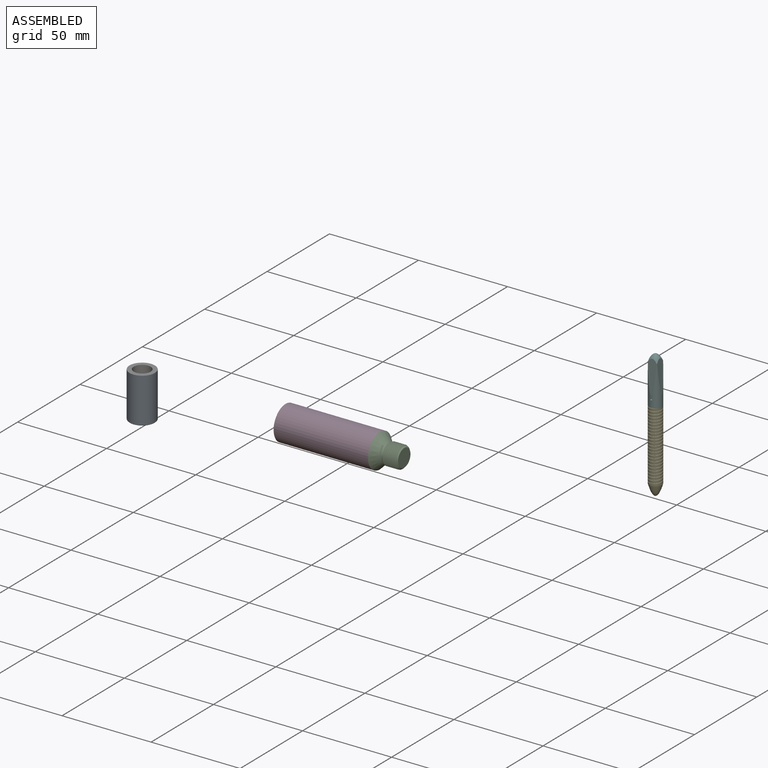
[diagram: assembled view]
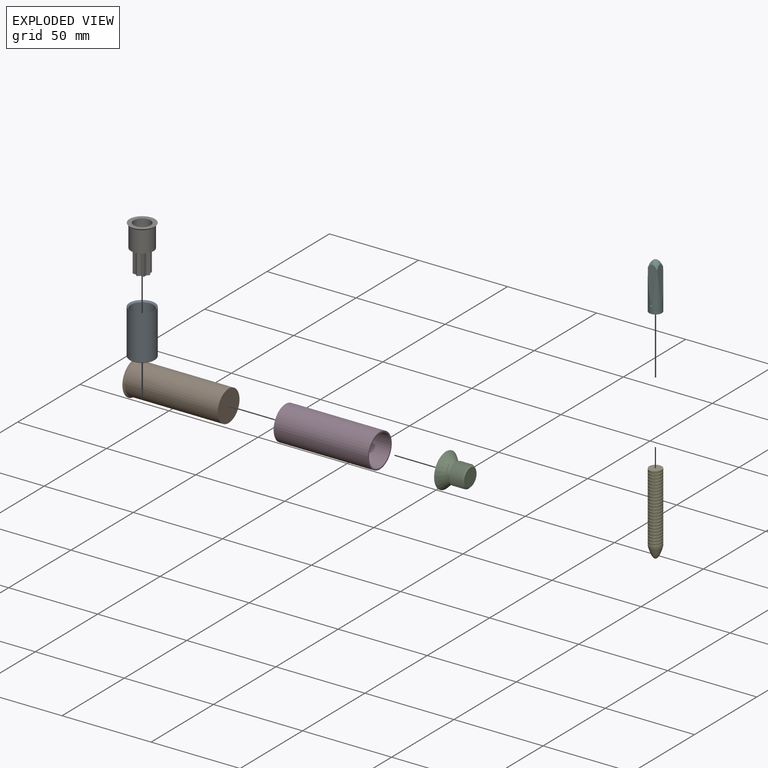
[diagram: exploded view]
GUIDED TOUR — MATED ASSEMBLY (Onshape document 8bd3620c7247700c8958ddae, AutoMate assembly 8bd3620c7247700c8958ddae_053780fc37a57f7eaa4ce051_d3495ea34c9d12acb558c91c_default)

This assembly has 7 components, labeled P0..P6 below (a component is one placed occurrence of a part; the same part can appear more than once), held together by 4 mates. A mate is a constraint between two components; its type names the relative motion it leaves free:
  FASTENED — locks the two components together rigidly (no relative motion).
Axis/direction vectors are unit vectors and 'through' points are millimeter coordinates, both in the assembly's world frame.

MATES
  1. FASTENED "Fastened 4": P0 <-> P6, direction (0.000, 0.000, 1.000) through (-91.17, -55.49, 8.03) mm
  2. FASTENED "Fastened 1": P3 <-> P2, direction (1.000, 0.000, 0.000) through (15.87, -17.82, -18.64) mm
  3. FASTENED "Fastened 2": P1 <-> P3, direction (-1.000, 0.000, 0.000) through (-37.11, -17.82, -18.64) mm
  4. FASTENED "Fastened 3": P4 <-> P5, direction (0.000, 0.000, 1.000) through (130.28, 39.78, 12.93) mm

ASSEMBLY ORDER
  1. P3 — the base component [order heuristic]
  2. P0 — core [order heuristic]
  3. P1 — core [order heuristic]
  4. P6 — core [order heuristic]
  5. P2 [order verified]
  6. P4 [order verified]
  7. P5 [order verified]
Order-tag legend:
  [order verified] — this step's position reverses a verified removal order: the component was checked to insert without passing through the ones already placed.
  [order heuristic] — the first 4 components form the assembly's core: parts whose collision-free extraction could not be verified, listed in mate-graph order.

Of the 7 components, 3 carry the full construction recipe — the FeatureScript program that regenerates the part's solid from scratch; the rest are supplied as boundary geometry only.
Each toured component is shown spotlighted twice — in the assembled view, then in the exploded view, where a leader line traces a displaced component back to its assembled socket (saturated green if recipe-attached, orange if geometry-only; every other component desaturated gray) — followed by its recipe or geometry summary and the mates that hold it.
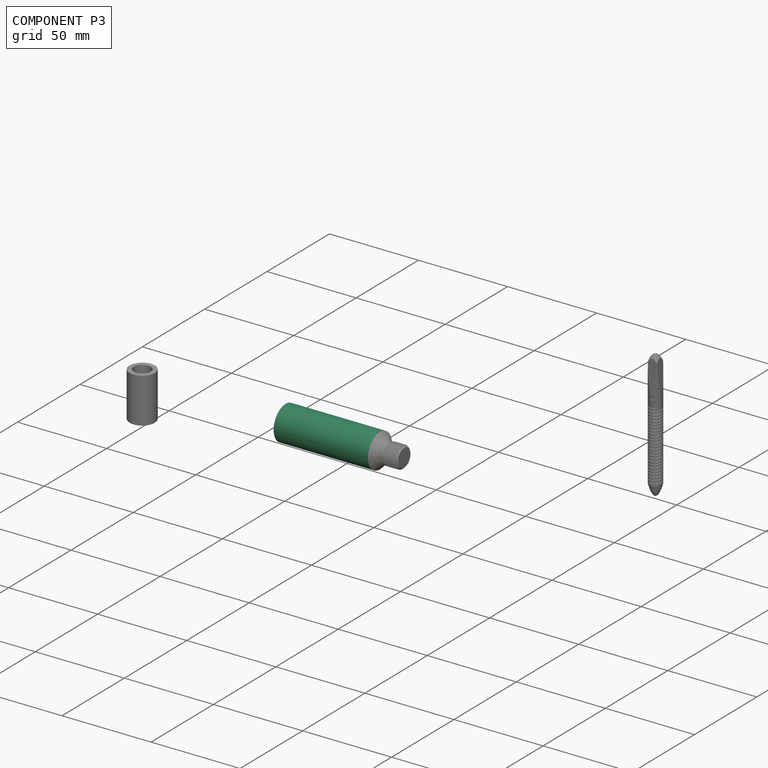
[diagram: component P3 — assembled]
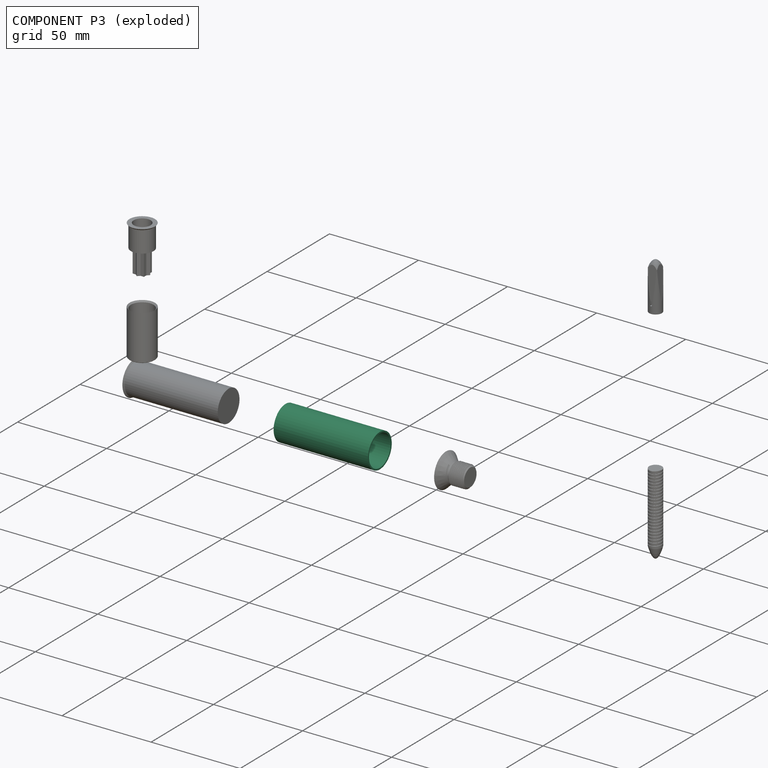
[diagram: component P3 — exploded]
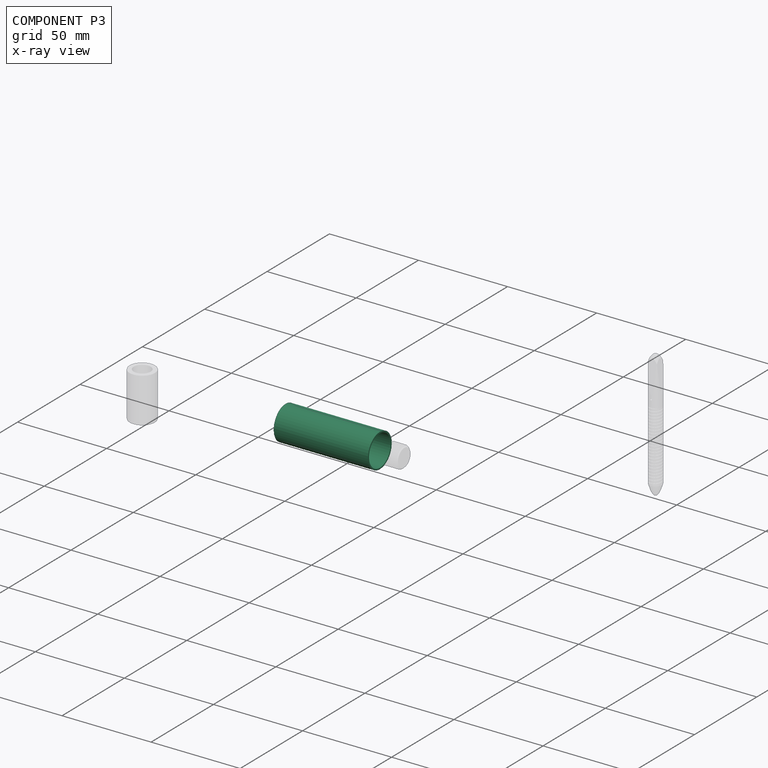
[diagram: component P3 — x-ray view]
COMPONENT P3 — recipe-attached (CADFS 00844887, mesh-verified: the recipe's output STEP matches this component's geometry to below the mesh-comparison resolution (tessellation chordal tolerance ~0.0891 mm)).
Held by: FASTENED mate "Fastened 1" to P2; FASTENED mate "Fastened 2" to P1.
Construction recipe (FeatureScript — the CAD program that rebuilds this solid; sketch coordinates are in the units given by the * unit suffixes, e.g. mm):

FeatureScript 1511;
import(path : "onshape/std/geometry.fs", version : "1511.0");
import(path : "onshape/std/common.fs", version : "1511.0");
const mm = millimeter;
const VERTEX = EntityType.VERTEX;
const EDGE = EntityType.EDGE;
const FACE = EntityType.FACE;
const BODY = EntityType.BODY;
function v(x, y){return vector(x, y);}
function OD(order){return orderDisambiguation(order);}
function OSD(set){return originalSetDisambiguation(set);}
function TD(topology){return topologyDisambiguation(topology);}
function TDD(query){return trueDependencyDisambiguation(query);}
function sQuery(a, b, c) {return sketchEntityQuery(a, b, c);}

annotation { "Feature Type Name" : "Feature", "Feature Type Description" : "" }
export const myFeature = defineFeature(function(context is Context, id is Id, definition is map)
    precondition{}
    {
        {
            var Q0;
            Q0=qCreatedBy(makeId("Front.planeOp"),FACE);
            var sketch = newSketch(context, id + "F0", { "sketchPlane" : qUnion([Q0])});
            skLineSegment(sketch, "E0.bottom", {"start": v(0.8, 8.73) * mm, "end": v(52.98, 8.73) * mm});
            skLineSegment(sketch, "E0.top", {"start": v(0, 9.53) * mm, "end": v(52.98, 9.53) * mm});
            skLineSegment(sketch, "E0.right", {"start": v(52.98, 8.73) * mm, "end": v(52.98, 9.53) * mm});
            skLineSegment(sketch, "E1", {"start": v(0, 0) * mm, "end": v(54.15, 0) * mm, "construction": true});
            skLineSegment(sketch, "E2", {"start": v(0, 9.53) * mm, "end": v(0.8, 8.73) * mm});
            skPoint(sketch, "E3.orphan", {"position": v(0, 8.73) * mm});
            skSolve(sketch);
        }
        {
            var Q0;
            Q0 = qSketchRegion(id + "F0", true);
            var Q1;
            Q1=makeQuery(id+"F0.imprint","IMPRINT",FACE,{"disambiguationData":[TD([[makeQuery(id+"F0.imprint","IMPRINT",EDGE,{"derivedFrom":sQuery(id+"F0.wireOp",EDGE,"E0.bottom")}),1.0]])]});
            var Q2;
            Q2=sQuery(id+"F0.wireOp",EDGE,"E1");
            revolve(context, id + "F1", {"surfaceOperationType" : NewSurfaceOperationType.NEW, "entities" : qUnion([Q0, Q1]), "axis" : qUnion([Q2]), "revolveType" : RevolveType.FULL});
        }
    });
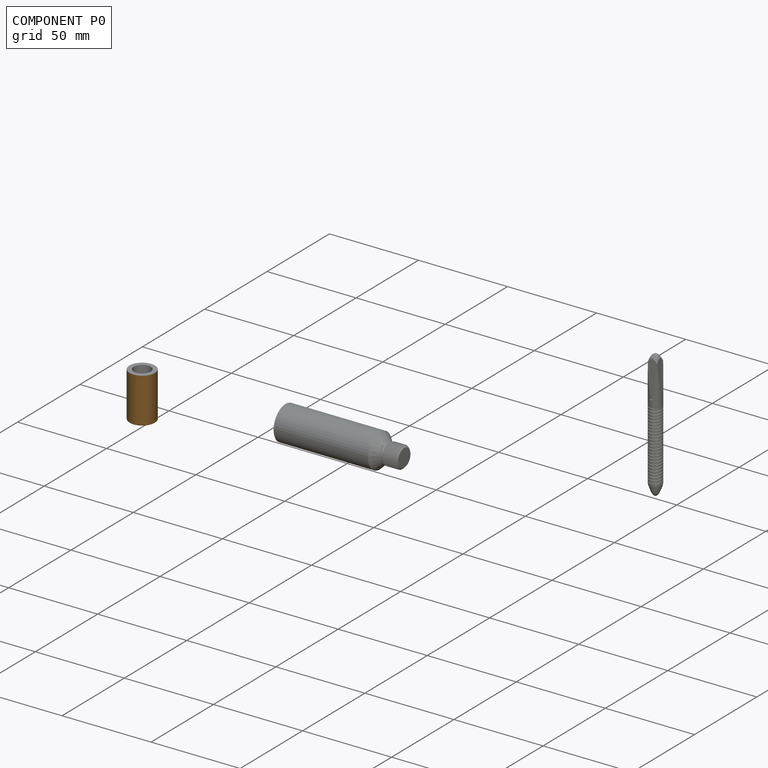
[diagram: component P0 — assembled]
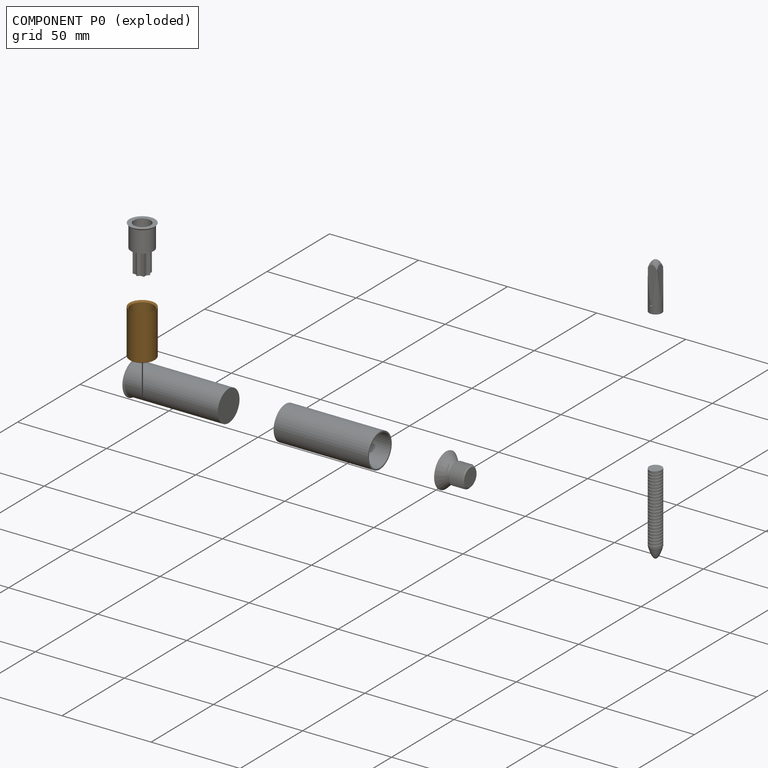
[diagram: component P0 — exploded]
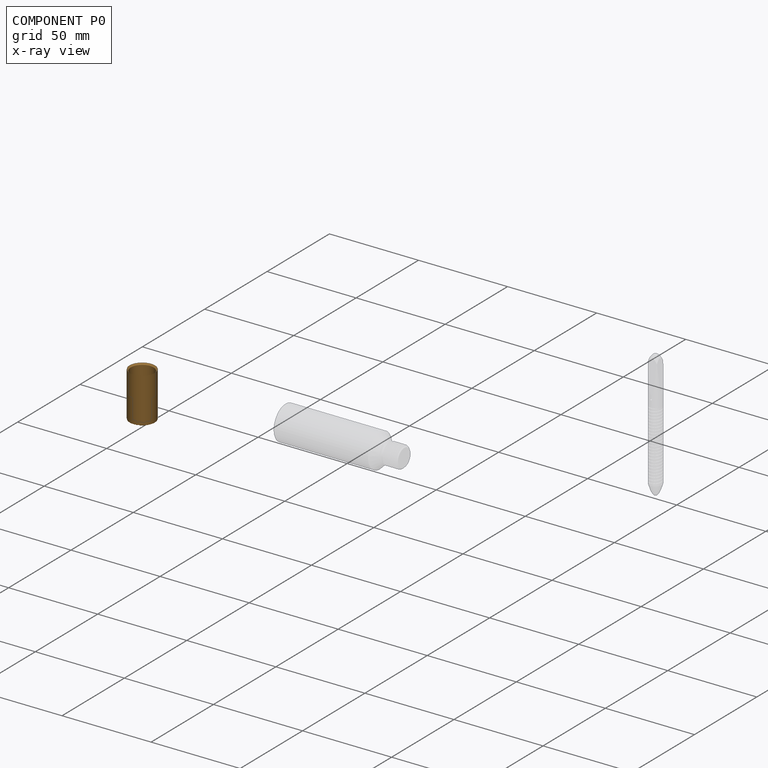
[diagram: component P0 — x-ray view]
COMPONENT P0 — geometry summary (no construction recipe available for this part):
  bounding box: 25.7 x 14.6 x 14.6 mm
  B-rep topology: 1 solid, 22 faces, 116 edges
  volume: 1793 mm^3 (33% of its bounding box)
  symmetry: 4-fold rotationally symmetric about the z axis; mirror-symmetric across its x mid-plane, y mid-plane
Held by: FASTENED mate "Fastened 4" to P6.
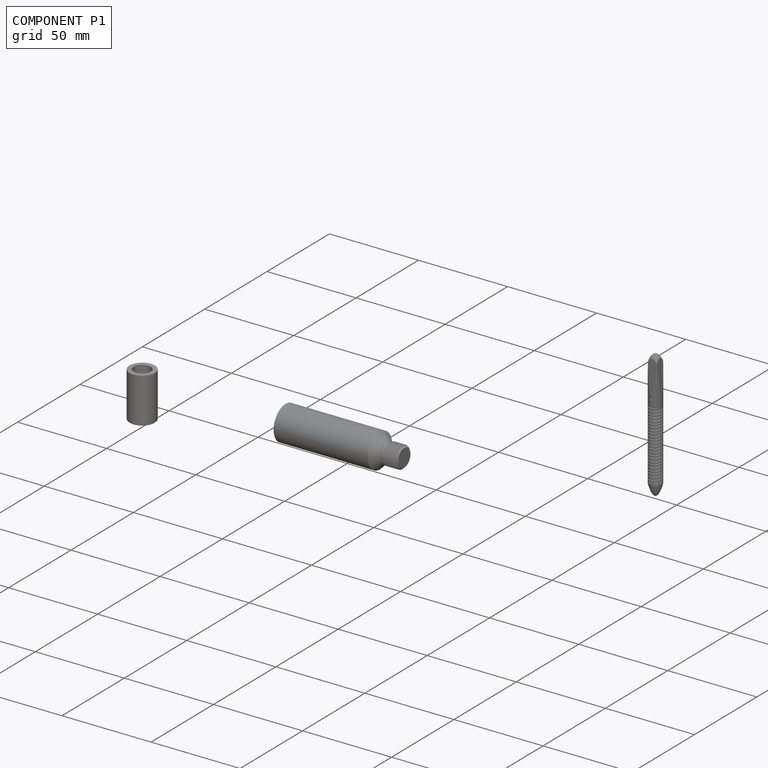
[diagram: component P1 — assembled]
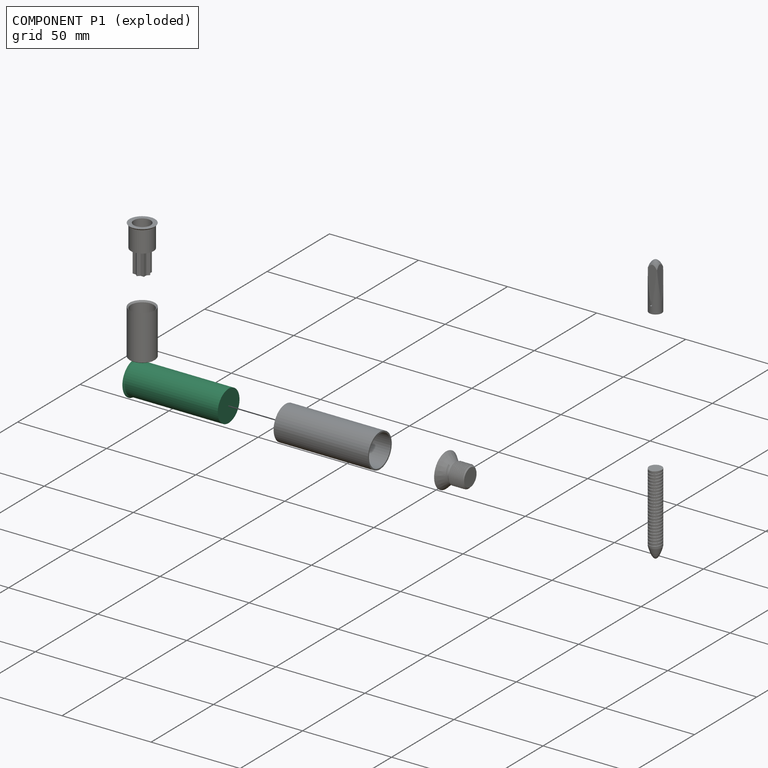
[diagram: component P1 — exploded]
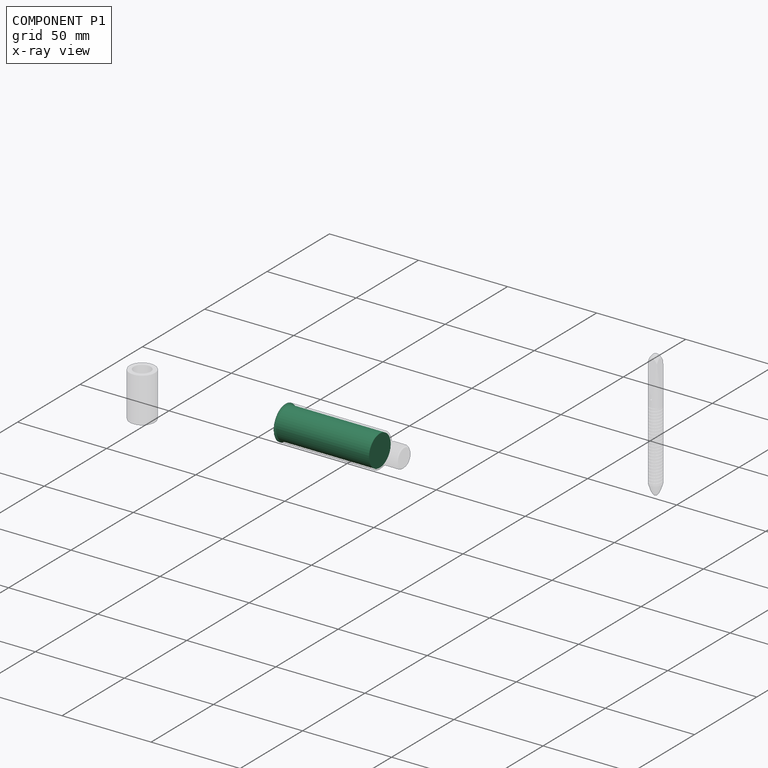
[diagram: component P1 — x-ray view]
COMPONENT P1 — recipe-attached (CADFS 00844889, mesh-verified: the recipe's output STEP matches this component's geometry to below the mesh-comparison resolution (tessellation chordal tolerance ~0.0891 mm)).
Held by: FASTENED mate "Fastened 2" to P3.
Construction recipe (FeatureScript — the CAD program that rebuilds this solid; sketch coordinates are in the units given by the * unit suffixes, e.g. mm):

FeatureScript 1511;
import(path : "onshape/std/geometry.fs", version : "1511.0");
import(path : "onshape/std/common.fs", version : "1511.0");
const mm = millimeter;
const VERTEX = EntityType.VERTEX;
const EDGE = EntityType.EDGE;
const FACE = EntityType.FACE;
const BODY = EntityType.BODY;
function v(x, y){return vector(x, y);}
function OD(order){return orderDisambiguation(order);}
function OSD(set){return originalSetDisambiguation(set);}
function TD(topology){return topologyDisambiguation(topology);}
function TDD(query){return trueDependencyDisambiguation(query);}
function sQuery(a, b, c) {return sketchEntityQuery(a, b, c);}

annotation { "Feature Type Name" : "Feature", "Feature Type Description" : "" }
export const myFeature = defineFeature(function(context is Context, id is Id, definition is map)
    precondition{}
    {
        {
            var Q0;
            Q0=qCreatedBy(makeId("Front.planeOp"),FACE);
            var sketch = newSketch(context, id + "F0", { "sketchPlane" : qUnion([Q0])});
            skLineSegment(sketch, "E0", {"start": v(0, 0) * mm, "end": v(0, 9.53) * mm});
            skLineSegment(sketch, "E1", {"start": v(52.98, 8.73) * mm, "end": v(52.98, 0) * mm});
            skLineSegment(sketch, "E2", {"start": v(52.98, 0) * mm, "end": v(0, 0) * mm, "construction": true});
            skLineSegment(sketch, "E3", {"start": v(0, 9.53) * mm, "end": v(0.8, 8.73) * mm});
            skLineSegment(sketch, "E4", {"start": v(0.8, 8.73) * mm, "end": v(52.98, 8.73) * mm});
            skLineSegment(sketch, "E5", {"start": v(52.2, 6.35) * mm, "end": v(0, 6.35) * mm});
            skLineSegment(sketch, "E6", {"start": v(52.2, 6.35) * mm, "end": v(52.2, 0) * mm});
            skLineSegment(sketch, "E7", {"start": v(52.2, 0) * mm, "end": v(52.98, 0) * mm});
            skSolve(sketch);
        }
        {
            var Q0;
            Q0=makeQuery(id+"F0.imprint","IMPRINT",FACE,{"disambiguationData":[TD([[makeQuery(id+"F0.imprint","IMPRINT",EDGE,{"derivedFrom":sQuery(id+"F0.wireOp",EDGE,"E1")}),-1.0]])]});
            var Q1;
            Q1=sQuery(id+"F0.wireOp",EDGE,"E2");
            revolve(context, id + "F1", {"surfaceOperationType" : NewSurfaceOperationType.NEW, "entities" : qUnion([Q0]), "axis" : qUnion([Q1]), "revolveType" : RevolveType.FULL});
        }
    });
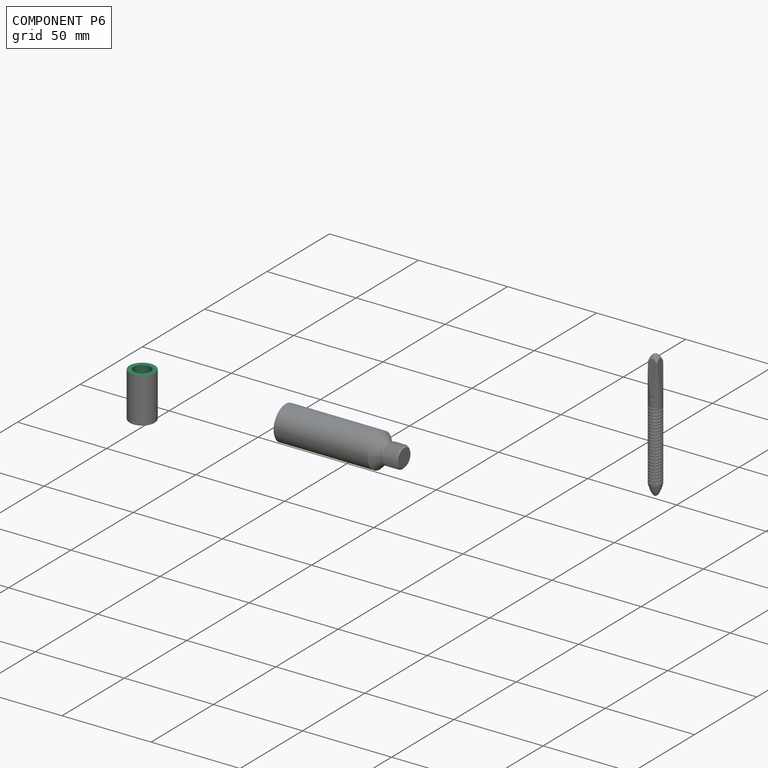
[diagram: component P6 — assembled]
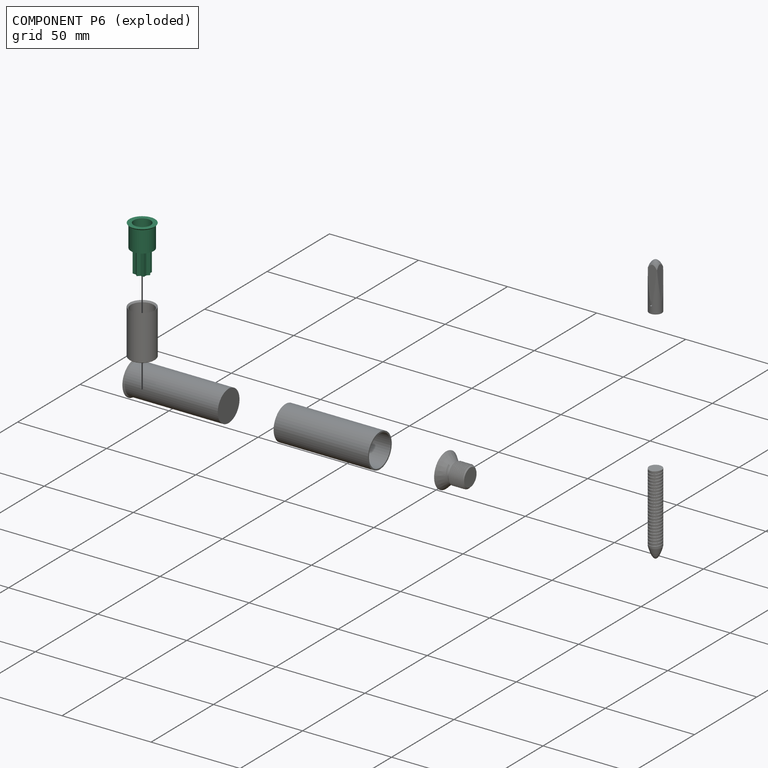
[diagram: component P6 — exploded]
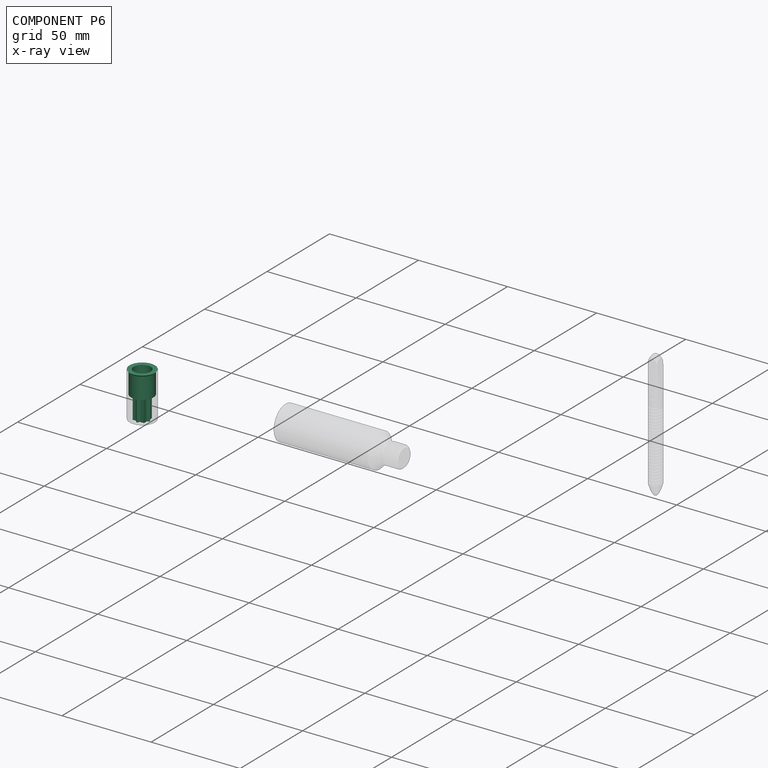
[diagram: component P6 — x-ray view]
COMPONENT P6 — recipe-attached (CADFS 00844892, mesh-verified: the recipe's output STEP matches this component's geometry to below the mesh-comparison resolution (tessellation chordal tolerance ~0.0486 mm)).
Held by: FASTENED mate "Fastened 4" to P0.
Construction recipe (FeatureScript — the CAD program that rebuilds this solid; sketch coordinates are in the units given by the * unit suffixes, e.g. mm):

FeatureScript 1511;
import(path : "onshape/std/geometry.fs", version : "1511.0");
import(path : "onshape/std/common.fs", version : "1511.0");
const mm = millimeter;
const VERTEX = EntityType.VERTEX;
const EDGE = EntityType.EDGE;
const FACE = EntityType.FACE;
const BODY = EntityType.BODY;
function v(x, y){return vector(x, y);}
function OD(order){return orderDisambiguation(order);}
function OSD(set){return originalSetDisambiguation(set);}
function TD(topology){return topologyDisambiguation(topology);}
function TDD(query){return trueDependencyDisambiguation(query);}
function sQuery(a, b, c) {return sketchEntityQuery(a, b, c);}

annotation { "Feature Type Name" : "Feature", "Feature Type Description" : "" }
export const myFeature = defineFeature(function(context is Context, id is Id, definition is map)
    precondition{}
    {
        {
            var Q0;
            Q0=qCreatedBy(makeId("Top.planeOp"),FACE);
            var sketch = newSketch(context, id + "F0", { "sketchPlane" : qUnion([Q0])});
            skLineSegment(sketch, "E0.bottom", {"start": v(3.18, -3.17) * mm, "end": v(1.32, -3.18) * mm});
            skLineSegment(sketch, "E0.top", {"start": v(3.18, 3.18) * mm, "end": v(1.32, 3.18) * mm});
            skLineSegment(sketch, "E0.left", {"start": v(3.18, -3.17) * mm, "end": v(3.18, -1.32) * mm});
            skLineSegment(sketch, "E0.right", {"start": v(-3.18, -3.18) * mm, "end": v(-3.18, -1.32) * mm});
            skPoint(sketch, "E0.middle", {"position": v(0, 0) * mm});
            skLineSegment(sketch, "E1.bottom", {"start": v(3.11, -3.11) * mm, "end": v(1.29, -3.11) * mm});
            skLineSegment(sketch, "E1.top", {"start": v(3.11, 3.11) * mm, "end": v(1.29, 3.11) * mm});
            skLineSegment(sketch, "E1.left", {"start": v(3.11, -3.11) * mm, "end": v(3.11, -1.29) * mm});
            skLineSegment(sketch, "E1.right", {"start": v(-3.11, -3.11) * mm, "end": v(-3.11, -1.29) * mm});
            skLineSegment(sketch, "E2.bottom", {"start": v(0, -4.5) * mm, "end": v(-1.32, -3.17) * mm});
            skLineSegment(sketch, "E2.top", {"start": v(4.5, 0) * mm, "end": v(3.18, 1.32) * mm});
            skLineSegment(sketch, "E2.left", {"start": v(0, -4.5) * mm, "end": v(1.32, -3.17) * mm});
            skLineSegment(sketch, "E2.right", {"start": v(-4.5, 0) * mm, "end": v(-3.18, 1.32) * mm});
            skLineSegment(sketch, "E3.bottom", {"start": v(0, -4.4) * mm, "end": v(-1.29, -3.11) * mm});
            skLineSegment(sketch, "E3.top", {"start": v(4.4, 0) * mm, "end": v(3.11, 1.29) * mm});
            skLineSegment(sketch, "E3.left", {"start": v(0, -4.4) * mm, "end": v(1.29, -3.11) * mm});
            skLineSegment(sketch, "E3.right", {"start": v(-4.4, 0) * mm, "end": v(-3.11, 1.29) * mm});
            skLineSegment(sketch, "E4.trimOffspring", {"start": v(-1.29, 3.11) * mm, "end": v(0, 4.4) * mm});
            skLineSegment(sketch, "E5.trimOffspring", {"start": v(-1.32, 3.18) * mm, "end": v(0, 4.5) * mm});
            skLineSegment(sketch, "E6.trimOffspring", {"start": v(-3.11, 1.29) * mm, "end": v(-3.11, 3.11) * mm});
            skLineSegment(sketch, "E7.trimOffspring", {"start": v(-3.18, 1.32) * mm, "end": v(-3.18, 3.17) * mm});
            skLineSegment(sketch, "E8.trimOffspring", {"start": v(-1.32, 3.18) * mm, "end": v(-3.18, 3.17) * mm});
            skLineSegment(sketch, "E9.trimOffspring", {"start": v(-1.29, 3.11) * mm, "end": v(-3.11, 3.11) * mm});
            skLineSegment(sketch, "E10.trimOffspring", {"start": v(1.29, 3.11) * mm, "end": v(0, 4.4) * mm});
            skLineSegment(sketch, "E11.trimOffspring", {"start": v(1.32, 3.18) * mm, "end": v(0, 4.5) * mm});
            skLineSegment(sketch, "E12.trimOffspring", {"start": v(3.18, 1.32) * mm, "end": v(3.18, 3.18) * mm});
            skLineSegment(sketch, "E13.trimOffspring", {"start": v(3.11, 1.29) * mm, "end": v(3.11, 3.11) * mm});
            skLineSegment(sketch, "E14.trimOffspring", {"start": v(3.11, -1.29) * mm, "end": v(4.4, 0) * mm});
            skLineSegment(sketch, "E15.trimOffspring", {"start": v(3.17, -1.32) * mm, "end": v(4.5, 0) * mm});
            skLineSegment(sketch, "E16.trimOffspring", {"start": v(-1.29, -3.11) * mm, "end": v(-3.11, -3.11) * mm});
            skLineSegment(sketch, "E17.trimOffspring", {"start": v(-1.32, -3.18) * mm, "end": v(-3.18, -3.18) * mm});
            skLineSegment(sketch, "E18.trimOffspring", {"start": v(-3.11, -1.29) * mm, "end": v(-4.4, 0) * mm});
            skLineSegment(sketch, "E19.trimOffspring", {"start": v(-3.18, -1.32) * mm, "end": v(-4.5, 0) * mm});
            skSolve(sketch);
        }
        {
            var Q0;
            Q0 = qSketchRegion(id + "F0", true);
            extrude(context, id + "F1", {"entities" : qUnion([Q0]), "oppositeDirection" : true, "depth" : 12.7 * mm, "offsetDistance" : 25.4 * mm});
        }
        {
            var Q0;
            Q0=qCreatedBy(makeId("Front.planeOp"),FACE);
            var sketch = newSketch(context, id + "F2", { "sketchPlane" : qUnion([Q0])});
            skLineSegment(sketch, "E20", {"start": v(0, 0) * mm, "end": v(0, 0.4) * mm});
            skLineSegment(sketch, "E21", {"start": v(-4.76, 12.7) * mm, "end": v(-7.14, 12.7) * mm});
            skLineSegment(sketch, "E22", {"start": v(-7.14, 0) * mm, "end": v(0, 0) * mm});
            skLineSegment(sketch, "E23", {"start": v(0, 0.4) * mm, "end": v(-4.76, 0.4) * mm});
            skLineSegment(sketch, "E24", {"start": v(-4.76, 0.4) * mm, "end": v(-4.76, 12.7) * mm});
            skLineSegment(sketch, "E25", {"start": v(-6.35, 0) * mm, "end": v(-6.35, 12.7) * mm});
            skLineSegment(sketch, "E26", {"start": v(-7.14, 12.7) * mm, "end": v(-6.35, 11.9) * mm});
            skSolve(sketch);
        }
        {
            var Q0;
            Q0 = qSketchRegion(id + "F2", true);
            var Q1;
            Q1=sQuery(id+"F2.wireOp",EDGE,"E20");
            revolve(context, id + "F3", {"operationType" : NewBodyOperationType.ADD, "surfaceOperationType" : NewSurfaceOperationType.NEW, "entities" : qUnion([Q0]), "axis" : qUnion([Q1]), "revolveType" : RevolveType.FULL});
        }
        {
            var Q0;
            Q0=makeQuery(id+"F3.boolean.opBoolean","SPLIT",FACE,{"disambiguationData":[TD([makeQuery(id+"F1.opExtrude","SWEPT_FACE",FACE,{"disambiguationData":[OSD([sQuery(id+"F0.wireOp",EDGE,"E1.bottom")])]})])],"derivedFrom":makeQuery(id+"F3.opRevolve","SWEPT_FACE",FACE,{"disambiguationData":[OSD([sQuery(id+"F2.wireOp",EDGE,"E22")])]})});
            extrude(context, id + "F4", {"entities" : qUnion([Q0]), "operationType" : NewBodyOperationType.REMOVE, "oppositeDirection" : true, "depth" : 25.4 * mm, "offsetDistance" : 25.4 * mm});
        }
        {
            var Q0;
            Q0=makeQuery(id+"F1.opExtrude","CAP_EDGE",EDGE,{"disambiguationData":[OSD([sQuery(id+"F0.wireOp",EDGE,"E3.left")])],"isStart":false});
            var Q1;
            Q1=makeQuery(id+"F1.opExtrude","CAP_EDGE",EDGE,{"disambiguationData":[OSD([sQuery(id+"F0.wireOp",EDGE,"E1.bottom")])],"isStart":false});
            var Q2;
            Q2=makeQuery(id+"F1.opExtrude","CAP_EDGE",EDGE,{"disambiguationData":[OSD([sQuery(id+"F0.wireOp",EDGE,"E1.left")])],"isStart":false});
            var Q3;
            Q3=makeQuery(id+"F1.opExtrude","CAP_EDGE",EDGE,{"disambiguationData":[OSD([sQuery(id+"F0.wireOp",EDGE,"E14.trimOffspring")])],"isStart":false});
            var Q4;
            Q4=makeQuery(id+"F1.opExtrude","CAP_EDGE",EDGE,{"disambiguationData":[OSD([sQuery(id+"F0.wireOp",EDGE,"E3.top")])],"isStart":false});
            var Q5;
            Q5=makeQuery(id+"F1.opExtrude","CAP_EDGE",EDGE,{"disambiguationData":[OSD([sQuery(id+"F0.wireOp",EDGE,"E13.trimOffspring")])],"isStart":false});
            var Q6;
            Q6=makeQuery(id+"F1.opExtrude","CAP_EDGE",EDGE,{"disambiguationData":[OSD([sQuery(id+"F0.wireOp",EDGE,"E1.top")])],"isStart":false});
            var Q7;
            Q7=makeQuery(id+"F1.opExtrude","CAP_EDGE",EDGE,{"disambiguationData":[OSD([sQuery(id+"F0.wireOp",EDGE,"E10.trimOffspring")])],"isStart":false});
            var Q8;
            Q8=makeQuery(id+"F1.opExtrude","CAP_EDGE",EDGE,{"disambiguationData":[OSD([sQuery(id+"F0.wireOp",EDGE,"E4.trimOffspring")])],"isStart":false});
            var Q9;
            Q9=makeQuery(id+"F1.opExtrude","CAP_EDGE",EDGE,{"disambiguationData":[OSD([sQuery(id+"F0.wireOp",EDGE,"E9.trimOffspring")])],"isStart":false});
            var Q10;
            Q10=makeQuery(id+"F1.opExtrude","CAP_EDGE",EDGE,{"disambiguationData":[OSD([sQuery(id+"F0.wireOp",EDGE,"E6.trimOffspring")])],"isStart":false});
            var Q11;
            Q11=makeQuery(id+"F1.opExtrude","CAP_EDGE",EDGE,{"disambiguationData":[OSD([sQuery(id+"F0.wireOp",EDGE,"E3.right")])],"isStart":false});
            var Q12;
            Q12=makeQuery(id+"F1.opExtrude","CAP_EDGE",EDGE,{"disambiguationData":[OSD([sQuery(id+"F0.wireOp",EDGE,"E18.trimOffspring")])],"isStart":false});
            var Q13;
            Q13=makeQuery(id+"F1.opExtrude","CAP_EDGE",EDGE,{"disambiguationData":[OSD([sQuery(id+"F0.wireOp",EDGE,"E1.right")])],"isStart":false});
            var Q14;
            Q14=makeQuery(id+"F1.opExtrude","CAP_EDGE",EDGE,{"disambiguationData":[OSD([sQuery(id+"F0.wireOp",EDGE,"E16.trimOffspring")])],"isStart":false});
            var Q15;
            Q15=makeQuery(id+"F1.opExtrude","CAP_EDGE",EDGE,{"disambiguationData":[OSD([sQuery(id+"F0.wireOp",EDGE,"E3.bottom")])],"isStart":false});
            chamfer(context, id + "F5", {"entities" : qUnion([Q0, Q1, Q2, Q3, Q4, Q5, Q6, Q7, Q8, Q9, Q10, Q11, Q12, Q13, Q14, Q15]), "width" : 0.08 * mm, "tangentPropagation" : true});
        }
    });
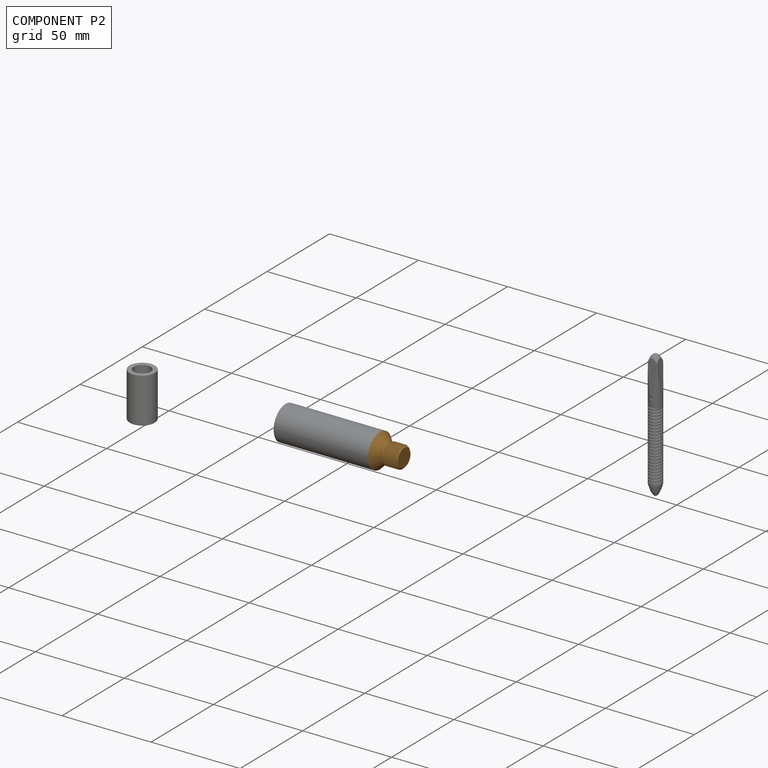
[diagram: component P2 — assembled]
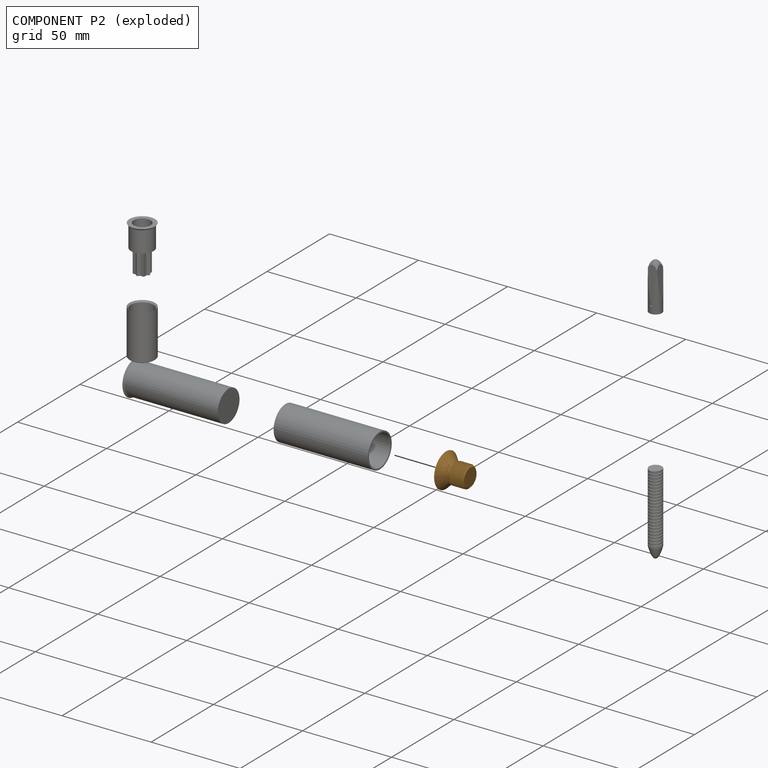
[diagram: component P2 — exploded]
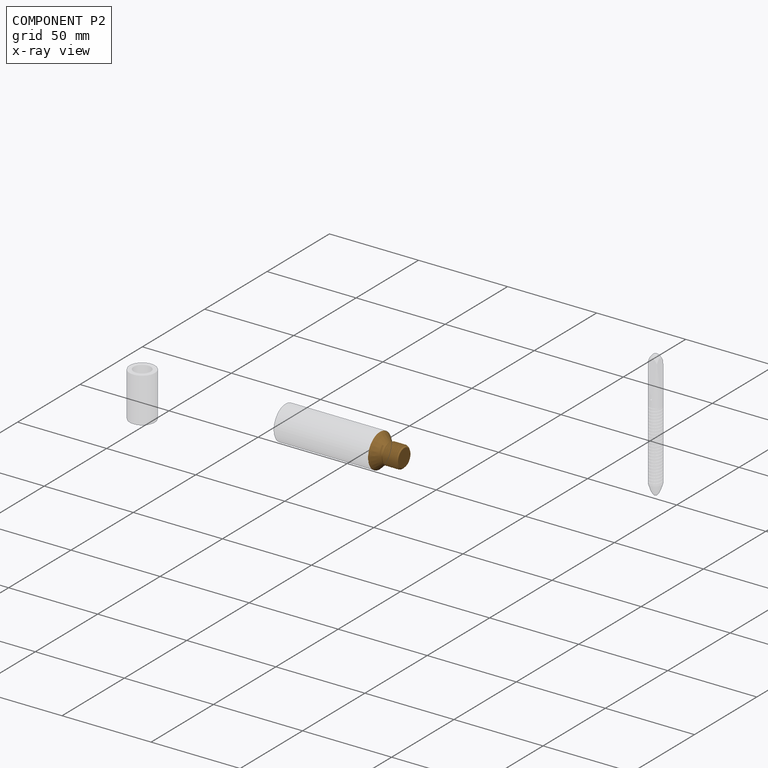
[diagram: component P2 — x-ray view]
COMPONENT P2 — geometry summary (no construction recipe available for this part):
  bounding box: 19.1 x 19.1 x 14.1 mm
  B-rep topology: 1 solid, 13 faces, 56 edges
  volume: 1623 mm^3 (32% of its bounding box)
  symmetry: revolution-symmetric about the x axis through its bounding-box center
Held by: FASTENED mate "Fastened 1" to P3.
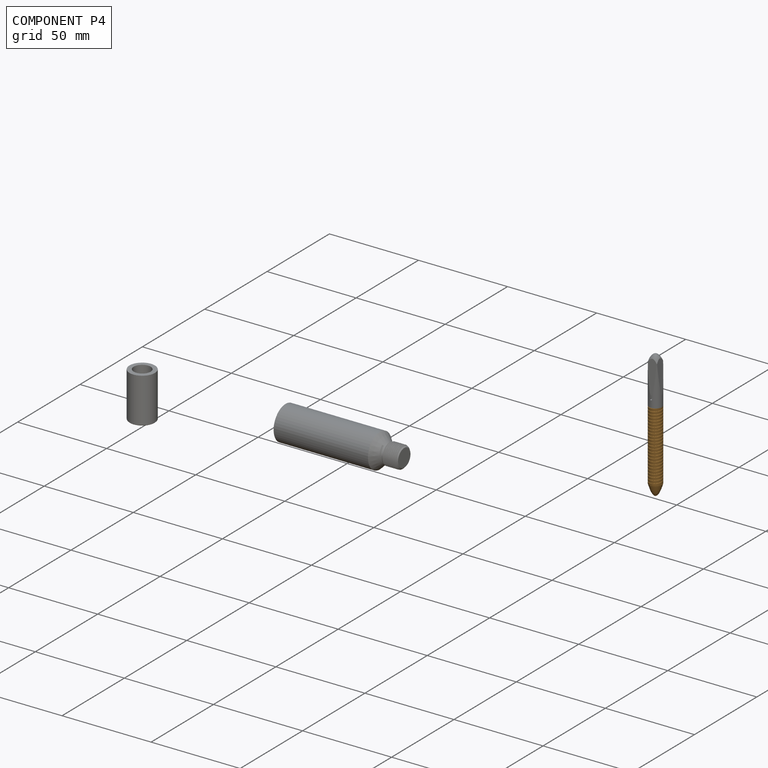
[diagram: component P4 — assembled]
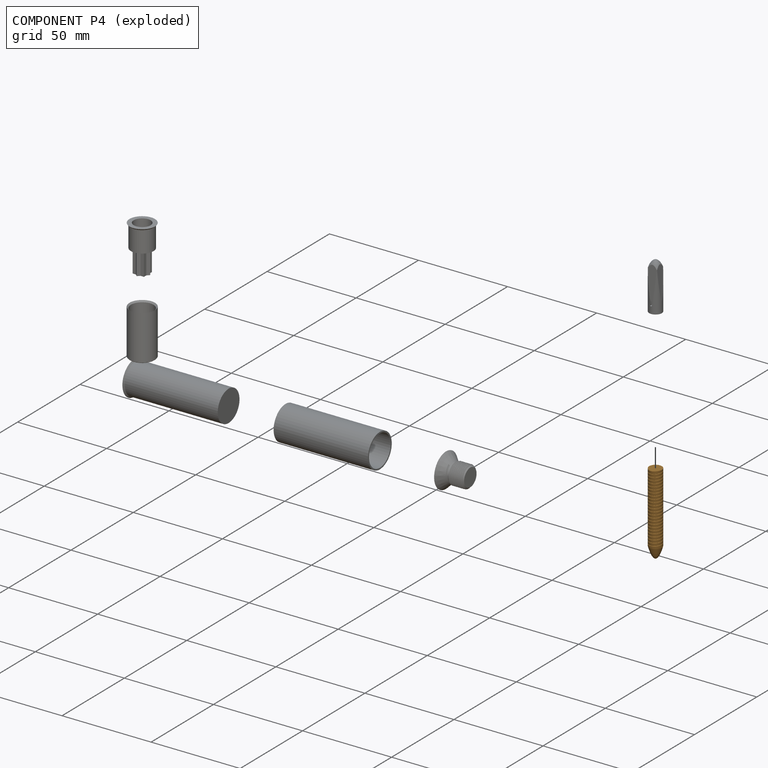
[diagram: component P4 — exploded]
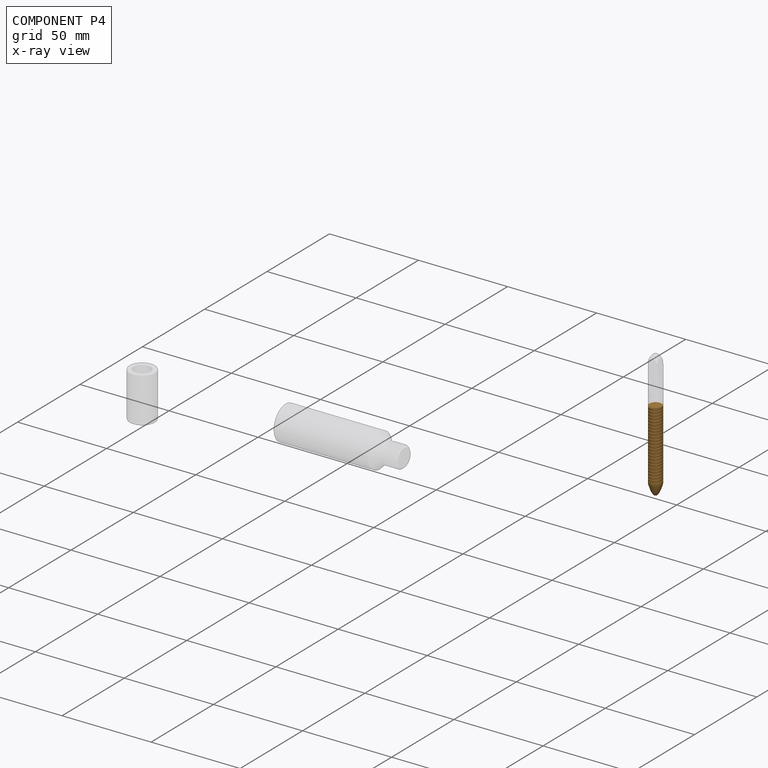
[diagram: component P4 — x-ray view]
COMPONENT P4 — geometry summary (no construction recipe available for this part):
  bounding box: 46.2 x 8.3 x 7.2 mm
  B-rep topology: 1 solid, 6 faces, 25 edges
  volume: 1710 mm^3 (62% of its bounding box)
Held by: FASTENED mate "Fastened 3" to P5.
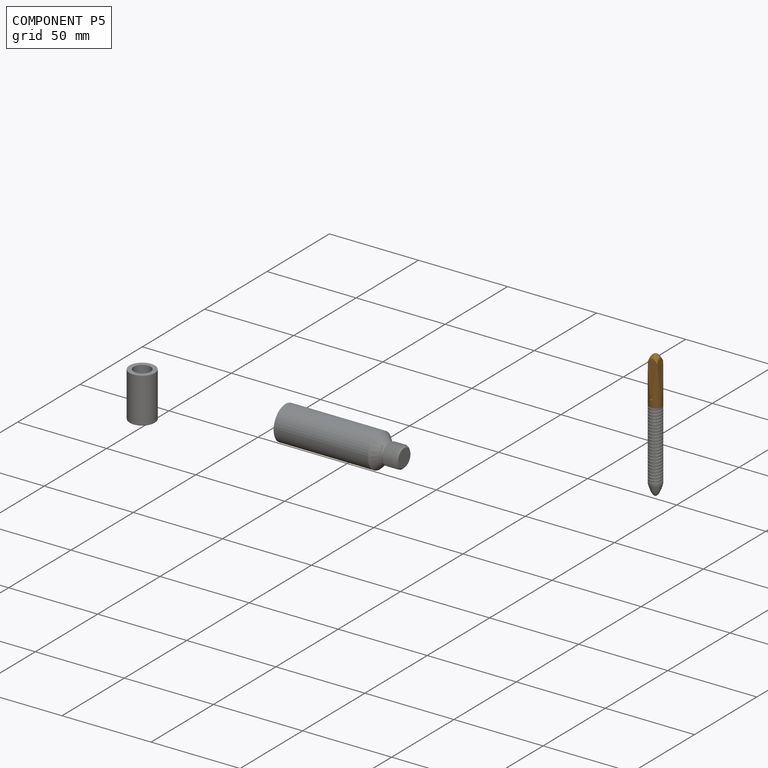
[diagram: component P5 — assembled]
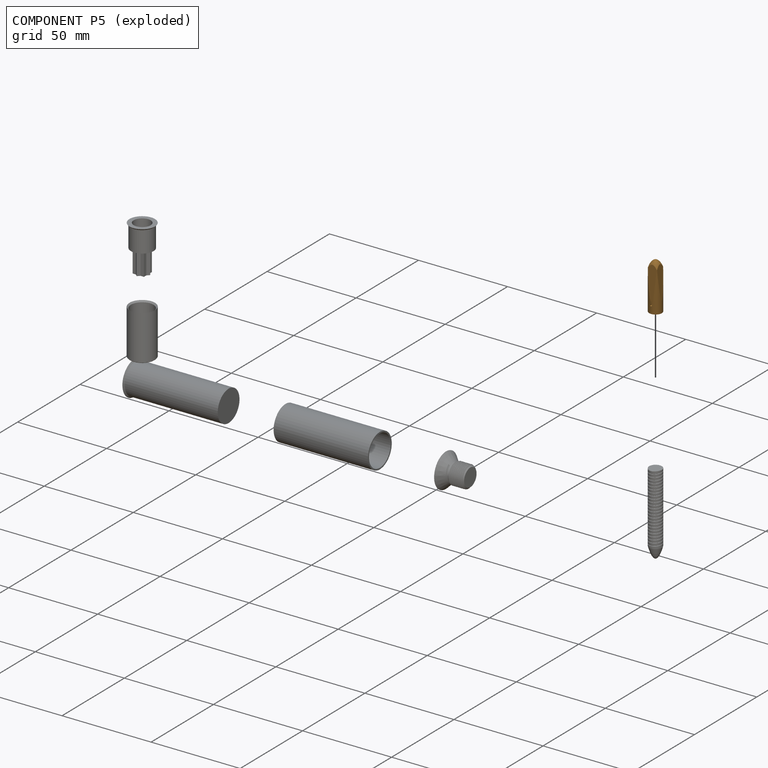
[diagram: component P5 — exploded]
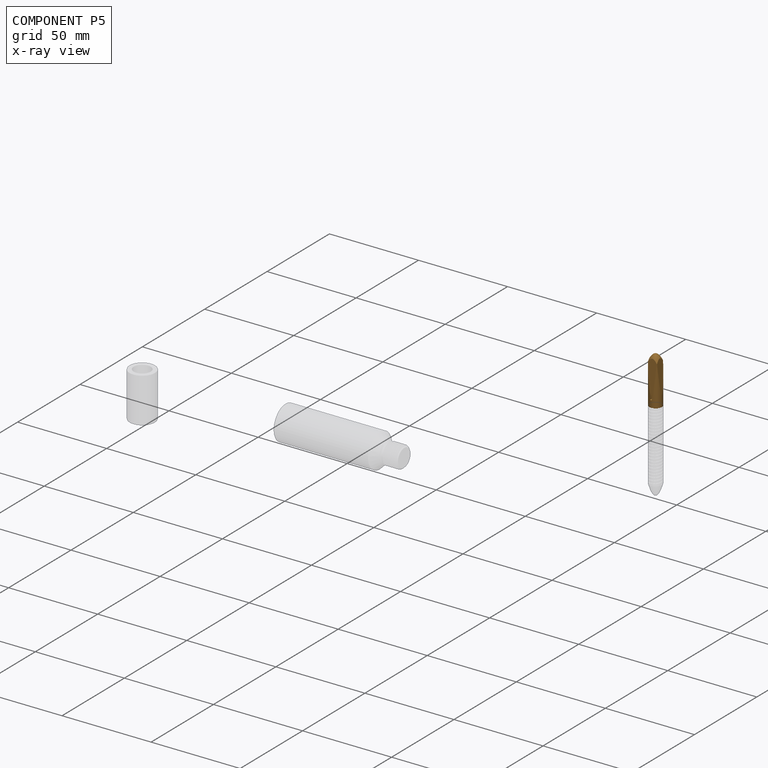
[diagram: component P5 — x-ray view]
COMPONENT P5 — geometry summary (no construction recipe available for this part):
  bounding box: 26.3 x 7.1 x 7.1 mm
  B-rep topology: 1 solid, 10 faces, 49 edges
  volume: 868 mm^3 (65% of its bounding box)
  symmetry: 2-fold rotationally symmetric about the z axis; mirror-symmetric across its x mid-plane, y mid-plane
Held by: FASTENED mate "Fastened 3" to P4.
PROVENANCE & LICENSES
Assembly (occurrences, transforms, mates, per-part STEP geometry): AutoMate dataset, Zenodo record 7776208, CC0.
Construction recipes: CADFS (HuggingFace VladPyatov/CADFS, CC-BY-4.0, layered over the ABC dataset), FeatureScript reconstruction programs keyed by ABC model id.
Join: ABC meta listings map ABC model id -> Onshape documentId; within a shared document, parts are matched by geometric signature (bounding-box dims + volume at 0.1% relative tolerance, exact B-rep face/solid counts).
Verification: 3 of this assembly's 7 components carry a recipe attachment, and every attachment is mesh-verified: the CADFS STEP and the AutoMate member STEP were compared as meshes in their shared local frame (symmetric sampled-point-to-mesh distance); worst across the 3 attachments: below the mesh-comparison resolution (tessellation chordal tolerance ~0.0891 mm) on a 59 mm part.
Renders: orthographic iso camera (az 35 / el 25); the floor grid conveys scale (grid pitch printed in each image; no ruler). In the exploded view each component is displaced by its stored offset vector: the offsets alone carry the explosion direction (mate normal/axis signs are not orientation cues and do not encode it), and separation distances are assigned per mate-chain, not proportionally to assembly-order depth.
